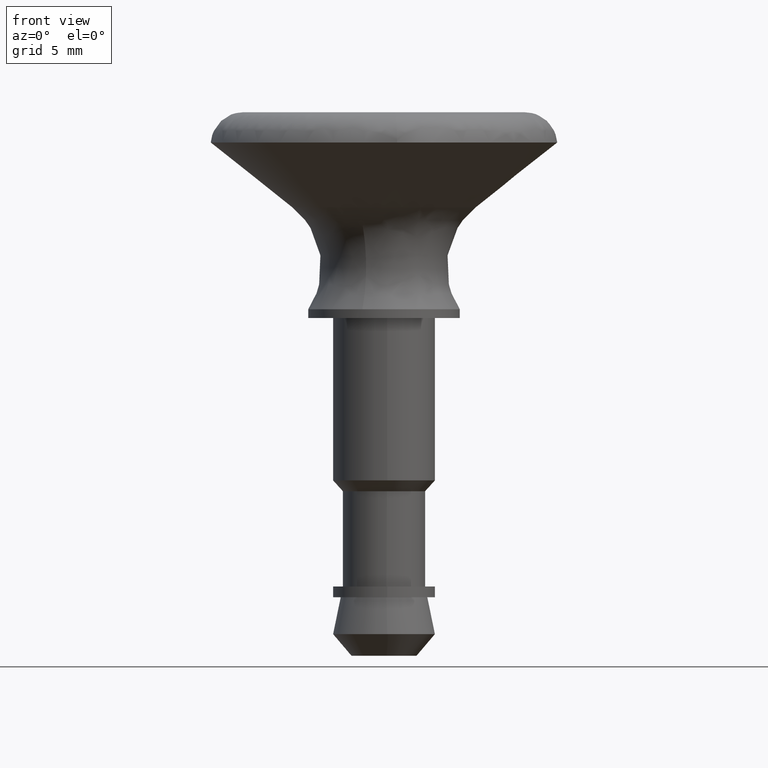
[diagram: clean part render]
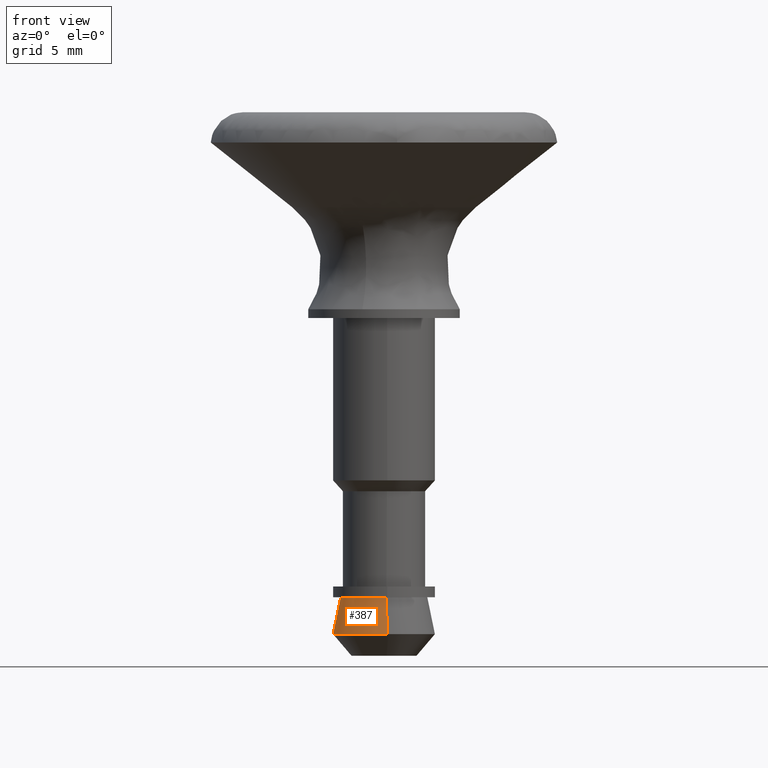
[diagram: same view with one face highlighted and labeled with its STEP entity id]
A machine part, front view. The second image highlights one B-rep face of the part: STEP entity #387.
In plain terms, the highlighted face is a freeform B-spline surface patch.
Its self-contained STEP definition (entity closure, byte-faithful):
#66=CARTESIAN_POINT('',(-0.277378149973550,2.333553024648988,-14.599905292484410));
#67=VERTEX_POINT('',#66);
#133=CARTESIAN_POINT('',(0.143462755416546,-2.345597308412887,-14.599905228921770));
#134=VERTEX_POINT('',#133);
#148=CARTESIAN_POINT('',(-2.349980501392760,0.0,-14.599905292479219));
#149=VERTEX_POINT('',#148);
#150=CARTESIAN_POINT('',(0.143462755416546,-2.345597308412887,-14.599905228921774));
#151=CARTESIAN_POINT('',(0.071798276345125,-2.349980501392761,-14.599905292479221));
#152=CARTESIAN_POINT('',(0.0,-2.349980501392760,-14.599905292479219));
#153=CARTESIAN_POINT('',(-2.349980501392761,-2.349980501392761,-14.599905292479217));
#154=CARTESIAN_POINT('',(-2.349980501392760,0.0,-14.599905292479219));
#162=(BOUNDED_CURVE()B_SPLINE_CURVE(2,(#150,#151,#152,#153,#154),.UNSPECIFIED.,.F.,.U.)B_SPLINE_CURVE_WITH_KNOTS((3,2,3),(0.739332980092524,0.750000000000000,1.0),.UNSPECIFIED.)CURVE()GEOMETRIC_REPRESENTATION_ITEM()RATIONAL_B_SPLINE_CURVE((0.976072079930343,0.987502808816609,1.0,0.707106781186548,1.0))REPRESENTATION_ITEM(''));
#163=EDGE_CURVE('',#134,#149,#162,.T.);
#165=CARTESIAN_POINT('',(-2.349980501392760,0.0,-14.599905292479219));
#166=CARTESIAN_POINT('',(-2.349980501392760,2.087192817759621,-14.599905292479217));
#167=CARTESIAN_POINT('',(-0.277378149973550,2.333553024648988,-14.599905292484406));
#175=(BOUNDED_CURVE()B_SPLINE_CURVE(2,(#165,#166,#167),.UNSPECIFIED.,.F.,.U.)B_SPLINE_CURVE_WITH_KNOTS((3,3),(0.0,0.229562473510832),.UNSPECIFIED.)CURVE()GEOMETRIC_REPRESENTATION_ITEM()RATIONAL_B_SPLINE_CURVE((1.0,0.731050832858538,0.956026754178453))REPRESENTATION_ITEM(''));
#176=EDGE_CURVE('',#149,#67,#175,.T.);
#283=CARTESIAN_POINT('',(-0.236068469326977,1.986019052726167,-12.900000000002100));
#284=VERTEX_POINT('',#283);
#285=CARTESIAN_POINT('',(-0.236068469326977,1.986019052726167,-12.900000000002100));
#286=CARTESIAN_POINT('',(-0.277378149973550,2.333553024648988,-14.599905292484410));
#287=QUASI_UNIFORM_CURVE('',1,(#285,#286),.UNSPECIFIED.,.F.,.U.);
#288=EDGE_CURVE('',#284,#67,#287,.T.);
#307=CARTESIAN_POINT('',(0.122097079114306,-1.996269596842351,-12.900000000006520));
#308=VERTEX_POINT('',#307);
#322=CARTESIAN_POINT('',(0.122097079114306,-1.996269596842351,-12.900000000006520));
#323=CARTESIAN_POINT('',(0.143462755416546,-2.345597308412887,-14.599905228921770));
#324=QUASI_UNIFORM_CURVE('',1,(#322,#323),.UNSPECIFIED.,.F.,.U.);
#325=EDGE_CURVE('',#308,#134,#324,.T.);
#333=CARTESIAN_POINT('',(0.121562934107821,-1.987536403913502,-12.857502367688021));
#334=CARTESIAN_POINT('',(-1.865973469805680,-2.109099338021323,-12.857502367688017));
#335=CARTESIAN_POINT('',(-1.987536403913502,-0.121562934107821,-12.857502367688021));
#336=CARTESIAN_POINT('',(-2.102334778902655,1.755373905855914,-12.857502367688015));
#337=CARTESIAN_POINT('',(-0.235035727297850,1.977330703429219,-12.857502367688026));
#338=CARTESIAN_POINT('',(0.144010376131359,-2.354548836806468,-14.643465365599001));
#339=CARTESIAN_POINT('',(-2.210538460675109,-2.498559212937826,-14.643465365598999));
#340=CARTESIAN_POINT('',(-2.354548836806468,-0.144010376131359,-14.643465365599001));
#341=CARTESIAN_POINT('',(-2.490545530887522,2.079515917321200,-14.643465365599008));
#342=CARTESIAN_POINT('',(-0.278436710506259,2.342458582682443,-14.643465365599006));
#350=(BOUNDED_SURFACE()B_SPLINE_SURFACE(2,1,((#333,#338),(#334,#339),(#335,#340),(#336,#341),(#337,#342)),.UNSPECIFIED.,.F.,.F.,.U.)B_SPLINE_SURFACE_WITH_KNOTS((3,2,3),(2,2),(0.0,3.908434263656739,7.660531156767208),(0.0,1.0),.UNSPECIFIED.)GEOMETRIC_REPRESENTATION_ITEM()RATIONAL_B_SPLINE_SURFACE(((1.0,1.0),(0.707106781186548,0.707106781186548),(1.0,1.0),(0.718822509939086,0.718822509939086),(0.977505800795127,0.977505800795127)))REPRESENTATION_ITEM('')SURFACE());
#351=ORIENTED_EDGE('',*,*,#176,.F.);
#352=ORIENTED_EDGE('',*,*,#163,.F.);
#353=ORIENTED_EDGE('',*,*,#325,.F.);
#354=CARTESIAN_POINT('',(-2.0,0.0,-12.900000000000000));
#355=VERTEX_POINT('',#354);
#356=CARTESIAN_POINT('',(0.122097079114306,-1.996269596842351,-12.900000000006525));
#357=CARTESIAN_POINT('',(0.061105526641813,-2.000000000000000,-12.900000000000004));
#358=CARTESIAN_POINT('',(0.0,-2.0,-12.900000000000000));
#359=CARTESIAN_POINT('',(-2.000000000000000,-2.000000000000000,-12.900000000000002));
#360=CARTESIAN_POINT('',(-2.0,0.0,-12.900000000000000));
#368=(BOUNDED_CURVE()B_SPLINE_CURVE(2,(#356,#357,#358,#359,#360),.UNSPECIFIED.,.F.,.U.)B_SPLINE_CURVE_WITH_KNOTS((3,2,3),(0.739332962234274,0.750000000000000,1.0),.UNSPECIFIED.)CURVE()GEOMETRIC_REPRESENTATION_ITEM()RATIONAL_B_SPLINE_CURVE((0.976072041656711,0.987502787894367,1.0,0.707106781186548,1.0))REPRESENTATION_ITEM(''));
#369=EDGE_CURVE('',#308,#355,#368,.T.);
#370=ORIENTED_EDGE('',*,*,#369,.T.);
#371=CARTESIAN_POINT('',(-2.0,0.0,-12.900000000000000));
#372=CARTESIAN_POINT('',(-2.000000000000000,1.776349051878579,-12.900000000000004));
#373=CARTESIAN_POINT('',(-0.236068469326977,1.986019052726168,-12.900000000002100));
#381=(BOUNDED_CURVE()B_SPLINE_CURVE(2,(#371,#372,#373),.UNSPECIFIED.,.F.,.U.)B_SPLINE_CURVE_WITH_KNOTS((3,3),(0.0,0.229562473513362),.UNSPECIFIED.)CURVE()GEOMETRIC_REPRESENTATION_ITEM()RATIONAL_B_SPLINE_CURVE((1.0,0.731050832855574,0.956026754183413))REPRESENTATION_ITEM(''));
#382=EDGE_CURVE('',#355,#284,#381,.T.);
#383=ORIENTED_EDGE('',*,*,#382,.T.);
#384=ORIENTED_EDGE('',*,*,#288,.T.);
#385=EDGE_LOOP('',(#351,#352,#353,#370,#383,#384));
#386=FACE_OUTER_BOUND('',#385,.T.);
#387=ADVANCED_FACE('',(#386),#350,.T.);